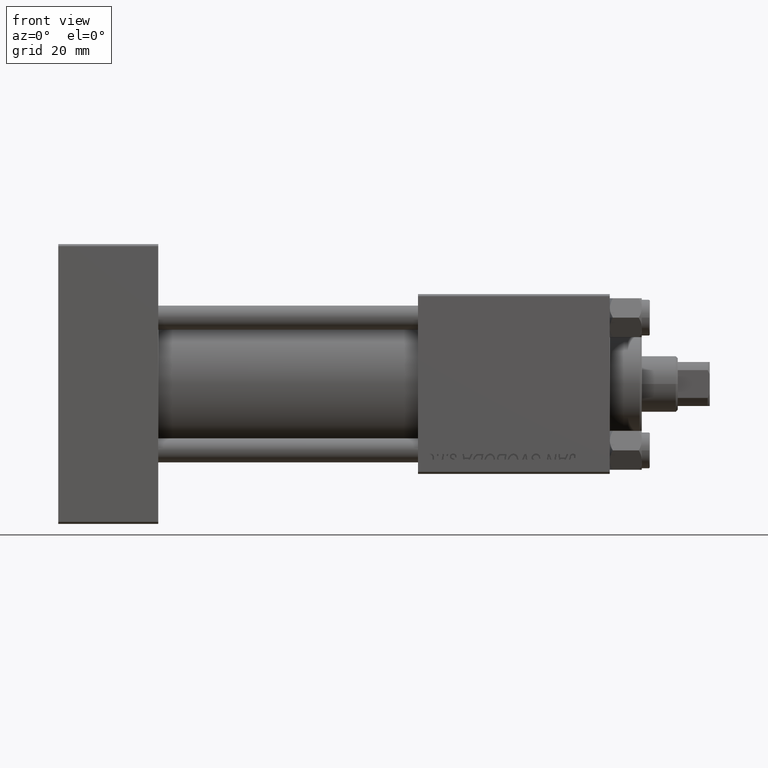
[diagram: clean part render]
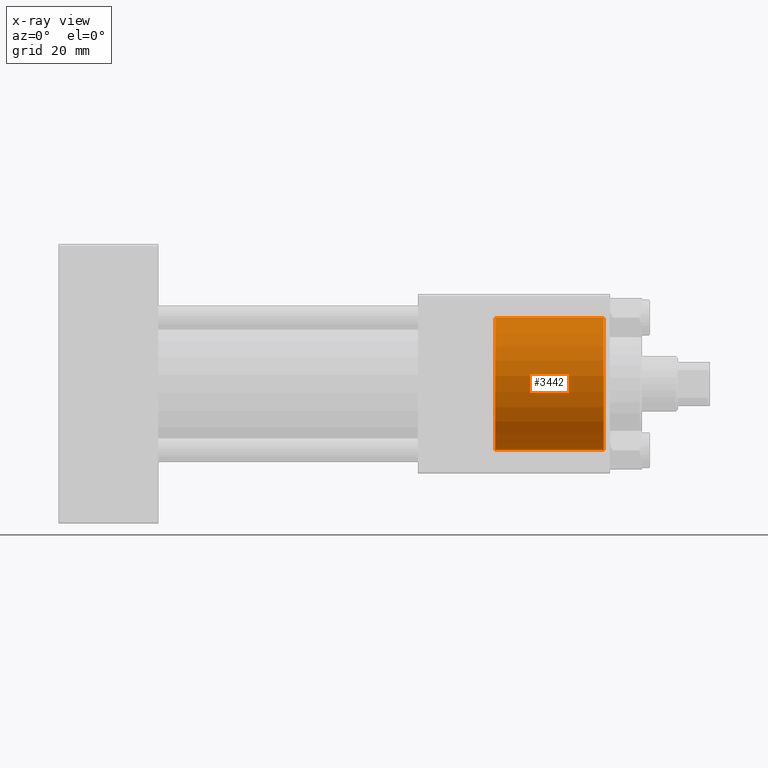
[diagram: x-ray — body ghosted, one internal face saturated and labeled with its STEP entity id]
A machine part, front view, then the same camera in x-ray: the body is ghosted and one INTERNAL B-rep face — a face not visible from any outside direction — is saturated and labeled: STEP entity #3442.
In plain terms, the highlighted cylindrical surface (partial cylindrical patch) has radius 16.5 mm, axis along (1, 0, 0).
Its self-contained STEP definition (entity closure, byte-faithful):
#894 = CIRCLE ( 'NONE', #34802, 16.50000000000000000 ) ;
#1453 = CIRCLE ( 'NONE', #16770, 16.50000000000000000 ) ;
#2976 = CARTESIAN_POINT ( 'NONE',  ( 136.5000000000000000, 0.000000000000000000, -16.50000000000000000 ) ) ;
#3442 = ADVANCED_FACE ( 'NONE', ( #44758 ), #41216, .F. ) ;
#6603 = CARTESIAN_POINT ( 'NONE',  ( 109.3000000000000114, 0.000000000000000000, 0.000000000000000000 ) ) ;
#11520 = VERTEX_POINT ( 'NONE', #2976 ) ;
#12400 = DIRECTION ( 'NONE',  ( 1.000000000000000000, -0.000000000000000000, -0.000000000000000000 ) ) ;
#12995 = VERTEX_POINT ( 'NONE', #24547 ) ;
#13502 = DIRECTION ( 'NONE',  ( 0.000000000000000000, 0.000000000000000000, -1.000000000000000000 ) ) ;
#14164 = EDGE_CURVE ( 'NONE', #18899, #12995, #1453, .T. ) ;
#15785 = ORIENTED_EDGE ( 'NONE', *, *, #33695, .T. ) ;
#16770 = AXIS2_PLACEMENT_3D ( 'NONE', #32690, #48107, #13502 ) ;
#17315 = AXIS2_PLACEMENT_3D ( 'NONE', #6603, #21517, #32209 ) ;
#18899 = VERTEX_POINT ( 'NONE', #29958 ) ;
#19720 = CARTESIAN_POINT ( 'NONE',  ( 109.3000000000000114, 0.000000000000000000, -16.50000000000000000 ) ) ;
#20488 = ORIENTED_EDGE ( 'NONE', *, *, #45483, .F. ) ;
#21517 = DIRECTION ( 'NONE',  ( 1.000000000000000000, -0.000000000000000000, -0.000000000000000000 ) ) ;
#23582 = VECTOR ( 'NONE', #35403, 1000.000000000000000 ) ;
#24547 = CARTESIAN_POINT ( 'NONE',  ( 109.3000000000000114, 0.000000000000000000, -16.50000000000000000 ) ) ;
#29738 = EDGE_LOOP ( 'NONE', ( #36724, #34682, #15785, #20488 ) ) ;
#29958 = CARTESIAN_POINT ( 'NONE',  ( 109.3000000000000114, 2.020667218593133100E-15, 16.50000000000000000 ) ) ;
#31835 = LINE ( 'NONE', #19720, #35084 ) ;
#32209 = DIRECTION ( 'NONE',  ( 0.000000000000000000, 0.000000000000000000, -1.000000000000000000 ) ) ;
#32690 = CARTESIAN_POINT ( 'NONE',  ( 109.3000000000000114, 0.000000000000000000, 0.000000000000000000 ) ) ;
#33695 = EDGE_CURVE ( 'NONE', #37057, #11520, #894, .T. ) ;
#33724 = DIRECTION ( 'NONE',  ( 1.000000000000000000, 0.000000000000000000, 0.000000000000000000 ) ) ;
#34682 = ORIENTED_EDGE ( 'NONE', *, *, #37109, .T. ) ;
#34802 = AXIS2_PLACEMENT_3D ( 'NONE', #46110, #33724, #37774 ) ;
#35084 = VECTOR ( 'NONE', #12400, 1000.000000000000000 ) ;
#35403 = DIRECTION ( 'NONE',  ( 1.000000000000000000, -0.000000000000000000, -0.000000000000000000 ) ) ;
#36724 = ORIENTED_EDGE ( 'NONE', *, *, #14164, .F. ) ;
#37057 = VERTEX_POINT ( 'NONE', #45514 ) ;
#37109 = EDGE_CURVE ( 'NONE', #18899, #37057, #42983, .T. ) ;
#37774 = DIRECTION ( 'NONE',  ( 0.000000000000000000, 0.000000000000000000, 1.000000000000000000 ) ) ;
#39202 = CARTESIAN_POINT ( 'NONE',  ( 109.3000000000000114, 2.020667218593133100E-15, 16.50000000000000000 ) ) ;
#41216 = CYLINDRICAL_SURFACE ( 'NONE', #17315, 16.50000000000000000 ) ;
#42983 = LINE ( 'NONE', #39202, #23582 ) ;
#44758 = FACE_OUTER_BOUND ( 'NONE', #29738, .T. ) ;
#45483 = EDGE_CURVE ( 'NONE', #12995, #11520, #31835, .T. ) ;
#45514 = CARTESIAN_POINT ( 'NONE',  ( 136.5000000000000000, 2.020667218593133100E-15, 16.50000000000000000 ) ) ;
#46110 = CARTESIAN_POINT ( 'NONE',  ( 136.5000000000000000, 0.000000000000000000, 0.000000000000000000 ) ) ;
#48107 = DIRECTION ( 'NONE',  ( 1.000000000000000000, 0.000000000000000000, 0.000000000000000000 ) ) ;